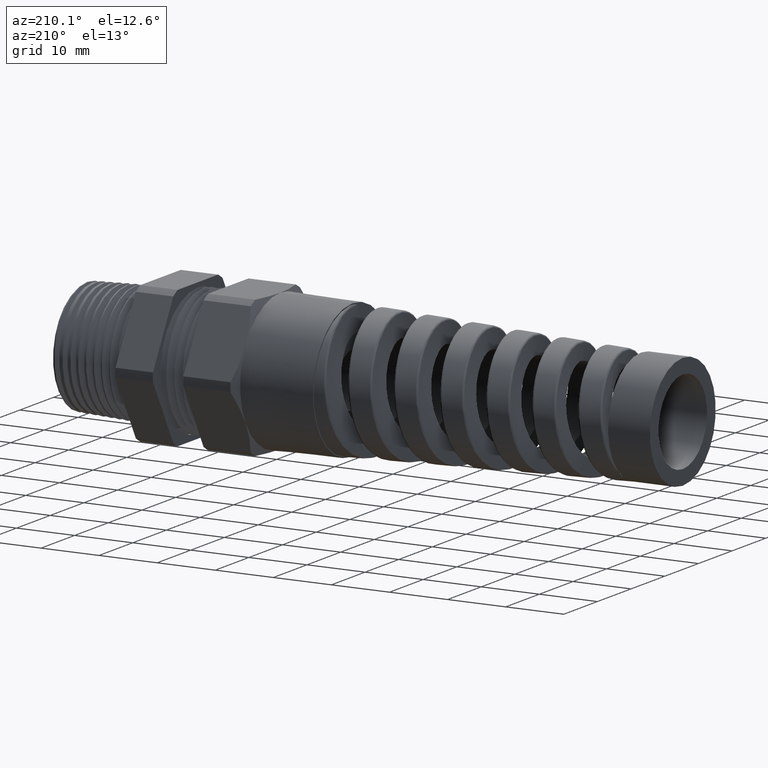
[diagram: clean part render]
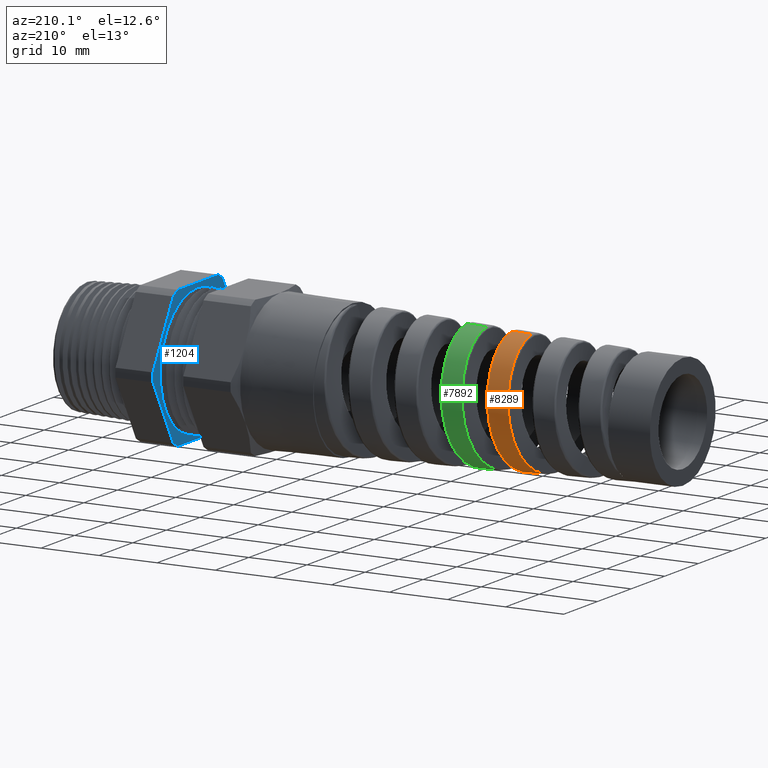
[diagram: same view with three faces highlighted in distinct colors, each labeled with its STEP entity id]
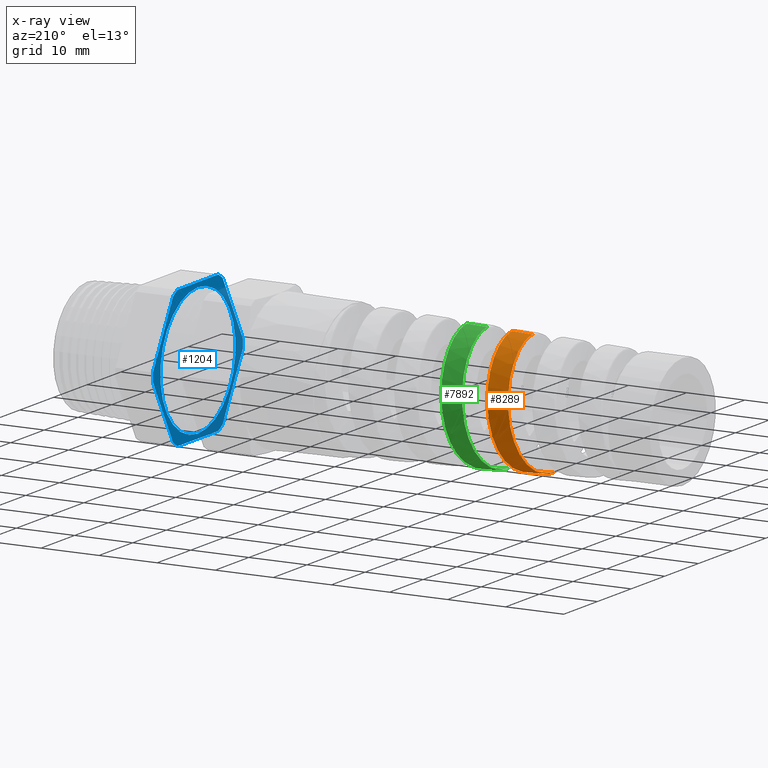
[diagram: x-ray of the same camera — body ghosted, the three highlighted faces saturated]
A machine part, auxiliary view with three faces highlighted in distinct colors.
The next image is the same camera in x-ray (body ghosted, the three faces saturated) — at least one of them is partly hidden behind the body in this view.
Their STEP definitions:

[orange] entity #8289 — the highlighted conical surface has half-angle 2.001 deg.
#6304 = DIRECTION ( 'NONE',  ( 0.0000000000000000000, 0.0000000000000000000, -1.000000000000000000 ) ) ;
#6305 = DIRECTION ( 'NONE',  ( 1.000000000000000000, 0.0000000000000000000, 0.0000000000000000000 ) ) ;
#6306 = CARTESIAN_POINT ( 'NONE',  ( -0.8125000000000001100, 0.0000000000000000000, 0.0000000000000000000 ) ) ;
#6307 = AXIS2_PLACEMENT_3D ( 'NONE', #6306, #6305, #6304 ) ;
#6309 = CONICAL_SURFACE ( 'NONE', #6307, 0.4699999999999997000, 0.03491723117042447300 ) ;
#6310 = FACE_OUTER_BOUND ( 'NONE', #8290, .T. ) ;
#6569 = CARTESIAN_POINT ( 'NONE',  ( -2.520890088642538300, -6.554961250664029700E-016, 0.4103234935826344800 ) ) ;
#6571 = CARTESIAN_POINT ( 'NONE',  ( -2.382622367421257900, -1.162062256569629500E-012, 0.4151533826153743800 ) ) ;
#6572 = CARTESIAN_POINT ( 'NONE',  ( -2.535530057869142000, 4.883877589493285900E-015, -0.4098120985427606800 ) ) ;
#6701 = CARTESIAN_POINT ( 'NONE',  ( -2.455623163969273400, 0.4124546707077826900, 0.02935010906068678800 ) ) ;
#6702 = CARTESIAN_POINT ( 'NONE',  ( -2.452460576437910200, 0.4097634502948373500, 0.05612606939273673300 ) ) ;
#6703 = CARTESIAN_POINT ( 'NONE',  ( -2.447693054796924900, 0.4018631530125697500, 0.09569265704391720400 ) ) ;
#6704 = CARTESIAN_POINT ( 'NONE',  ( -2.446100240942570700, 0.3985812000492490200, 0.1087812875034731300 ) ) ;
#6705 = CARTESIAN_POINT ( 'NONE',  ( -2.442895339747758000, 0.3906851840676873200, 0.1347512481100501000 ) ) ;
#6706 = CARTESIAN_POINT ( 'NONE',  ( -2.441287470385564700, 0.3860709988061172800, 0.1476024137888938300 ) ) ;
#6707 = CARTESIAN_POINT ( 'NONE',  ( -2.436518506772265900, 0.3705328584375152700, 0.1850058376123919500 ) ) ;
#6708 = CARTESIAN_POINT ( 'NONE',  ( -2.433375766953780800, 0.3578497915887322600, 0.2087005057276331800 ) ) ;
#6709 = CARTESIAN_POINT ( 'NONE',  ( -2.428617159533685000, 0.3353483246290094900, 0.2423729053444111700 ) ) ;
#6710 = CARTESIAN_POINT ( 'NONE',  ( -2.427015004051396500, 0.3272172450140492000, 0.2533383754506575200 ) ) ;
#6711 = CARTESIAN_POINT ( 'NONE',  ( -2.423823182652007800, 0.3099871308722260700, 0.2743203933354538300 ) ) ;
#6712 = CARTESIAN_POINT ( 'NONE',  ( -2.422237634817187700, 0.3009174298785358700, 0.2843147309983785600 ) ) ;
#6713 = CARTESIAN_POINT ( 'NONE',  ( -2.417488344695855900, 0.2723839510260149300, 0.3128469345260469500 ) ) ;
#6714 = CARTESIAN_POINT ( 'NONE',  ( -2.414331380070115200, 0.2516082814434453300, 0.3299475780043464300 ) ) ;
#6715 = CARTESIAN_POINT ( 'NONE',  ( -2.409531461711748300, 0.2177438171439296800, 0.3526257826350356900 ) ) ;
#6716 = CARTESIAN_POINT ( 'NONE',  ( -2.407929373184233100, 0.2060554721915159300, 0.3596419088151277500 ) ) ;
#6717 = CARTESIAN_POINT ( 'NONE',  ( -2.404759900360482900, 0.1822688929422900900, 0.3723854913059716500 ) ) ;
#6718 = CARTESIAN_POINT ( 'NONE',  ( -2.401607716038892000, 0.1579660836854906400, 0.3839136059991433100 ) ) ;
#6719 = CARTESIAN_POINT ( 'NONE',  ( -2.398457904814599800, 0.1326473187054666200, 0.3930400648114727400 ) ) ;
#6720 = CARTESIAN_POINT ( 'NONE',  ( -2.395292712324435000, 0.1068146005746220700, 0.4009465517130492200 ) ) ;
#6721 = CARTESIAN_POINT ( 'NONE',  ( -2.393693564517252800, 0.09356663231017163500, 0.4043026643819903100 ) ) ;
#6722 = CARTESIAN_POINT ( 'NONE',  ( -2.388924349656614200, 0.05367562409610236000, 0.4123402314850824200 ) ) ;
#6723 = CARTESIAN_POINT ( 'NONE',  ( -2.385783731389099500, 0.02691544841408726300, 0.4150429516557007100 ) ) ;
#6724 = CARTESIAN_POINT ( 'NONE',  ( -2.382622367421257900, -1.162062256569629500E-012, 0.4151533826153743800 ) ) ;
#6725 = B_SPLINE_CURVE_WITH_KNOTS ( 'NONE', 3,
 ( #6724, #6723, #6722, #6721, #6720, #6719, #6718, #6717, #6716, #6715, #6714, #6713, #6712, #6711, #6710, #6709, #6708, #6707, #6706, #6705, #6704, #6703, #6702, #6701, #6777, #6776, #6775, #6774, #6773, #6772, #6771, #6770, #6769, #6768, #6767, #6766, #6765, #6764, #6763, #6762, #6761, #6760, #6759, #6758, #6757, #6756 ),
 .UNSPECIFIED., .F., .F.,
 ( 4, 2, 2, 1, 2, 2, 2, 2, 2, 2, 2, 2, 2, 2, 1, 2, 2, 2, 2, 2, 2, 2, 2, 4 ),
 ( 0.2487723890645576500, 0.2508620945771786700, 0.2519069473334891700, 0.2529518000897996700, 0.2539966528461101700, 0.2550415056024206700, 0.2571312111150417200, 0.2581760638713522200, 0.2592209166276627200, 0.2613106221402837200, 0.2623554748965942200, 0.2634003276529047800, 0.2654900331655257700, 0.2665348859218362700, 0.2675797386781467700, 0.2686245914344572700, 0.2696694441907677700, 0.2717591497033887700, 0.2738488552160098200, 0.2759385607286308200, 0.2769834134849413200, 0.2780282662412518800, 0.2801179717538728700, 0.2822076772664938700 ),
 .UNSPECIFIED. ) ;
#6727 = DIRECTION ( 'NONE',  ( 0.9993904554178625300, 0.0000000000000000000, -0.03491013634572581700 ) ) ;
#6728 = VECTOR ( 'NONE', #6727, 39.37007874015748900 ) ;
#6729 = CARTESIAN_POINT ( 'NONE',  ( -0.8125000000000001100, 0.0000000000000000000, -0.4699999999999997000 ) ) ;
#6730 = LINE ( 'NONE', #6729, #6728 ) ;
#6739 = CARTESIAN_POINT ( 'NONE',  ( -2.641726318552811900, 0.2488881548808424800, -0.3219970296215667300 ) ) ;
#6740 = CARTESIAN_POINT ( 'NONE',  ( -2.648117792817800400, 0.2046159365757712600, -0.3515372433686442800 ) ) ;
#6741 = CARTESIAN_POINT ( 'NONE',  ( -2.651368160356153000, 0.1806496297836547900, -0.3643087066383843800 ) ) ;
#6742 = CARTESIAN_POINT ( 'NONE',  ( -2.657756725379170100, 0.1313954179546882300, -0.3845897992436332900 ) ) ;
#6743 = CARTESIAN_POINT ( 'NONE',  ( -2.660923323347921700, 0.1059611415070740400, -0.3922532157979387000 ) ) ;
#6744 = CARTESIAN_POINT ( 'NONE',  ( -2.665731533148957100, 0.06659410775997647000, -0.3999786724937319800 ) ) ;
#6745 = CARTESIAN_POINT ( 'NONE',  ( -2.667351152406396000, 0.05320865632576702400, -0.4019213225723222100 ) ) ;
#6746 = CARTESIAN_POINT ( 'NONE',  ( -2.670560620915582100, 0.02657883937888307400, -0.4044436077373180200 ) ) ;
#6747 = CARTESIAN_POINT ( 'NONE',  ( -2.672157133109870600, 0.01328071796107075000, -0.4050395196179626400 ) ) ;
#6748 = CARTESIAN_POINT ( 'NONE',  ( -2.673753520549895200, -4.069807014385671700E-015, -0.4049837555240694000 ) ) ;
#6749 = B_SPLINE_CURVE_WITH_KNOTS ( 'NONE', 3,
 ( #6748, #6747, #6746, #6745, #6744, #6743, #6742, #6741, #6740, #6739, #6817, #6816, #6815, #6814, #6813, #6812, #6811, #6810, #6809, #6808, #6807, #6806, #6805, #6804, #6803, #6802, #6801, #6800, #6799, #6798, #6797, #6796, #6795, #6794, #6793, #6792, #6791, #6790, #6789, #6788, #6787, #6786, #6785, #6784, #6783, #6782, #6781, #6780 ),
 .UNSPECIFIED., .F., .F.,
 ( 4, 2, 2, 2, 2, 2, 2, 1, 2, 2, 2, 2, 2, 2, 2, 2, 2, 2, 1, 2, 2, 2, 2, 2, 4 ),
 ( 0.1215856813164472000, 0.1226144166012401600, 0.1236431518860331000, 0.1257006224556190000, 0.1277580930252049100, 0.1298155635947908200, 0.1308442988795837600, 0.1318730341643767300, 0.1329017694491696800, 0.1339305047339626500, 0.1359879753035485600, 0.1370167105883415000, 0.1380454458731344400, 0.1401029164427203500, 0.1411316517275133200, 0.1421603870123062700, 0.1442178575818921800, 0.1452465928666851200, 0.1462753281514780600, 0.1473040634362710300, 0.1483327987210639700, 0.1503902692906498600, 0.1514190045754428000, 0.1524477398602357700, 0.1545052104298216500 ),
 .UNSPECIFIED. ) ;
#6751 = CARTESIAN_POINT ( 'NONE',  ( -2.673753520549895200, -4.069807014385671700E-015, -0.4049837555240694000 ) ) ;
#6752 = DIRECTION ( 'NONE',  ( 0.9993904554178625300, 4.275258673359080400E-018, 0.03491013634572581700 ) ) ;
#6753 = VECTOR ( 'NONE', #6752, 39.37007874015748900 ) ;
#6754 = CARTESIAN_POINT ( 'NONE',  ( -0.8125000000000001100, 5.755839955992556000E-017, 0.4699999999999997000 ) ) ;
#6755 = LINE ( 'NONE', #6754, #6753 ) ;
#6756 = CARTESIAN_POINT ( 'NONE',  ( -2.535530057869142000, 4.883877589493285900E-015, -0.4098120985427606800 ) ) ;
#6757 = CARTESIAN_POINT ( 'NONE',  ( -2.532342870058111700, 0.02688503948214615200, -0.4099234315662440000 ) ) ;
#6758 = CARTESIAN_POINT ( 'NONE',  ( -2.529166970593978100, 0.05370150810292529500, -0.4074144892066017800 ) ) ;
#6759 = CARTESIAN_POINT ( 'NONE',  ( -2.522701397561375900, 0.1071755438181164500, -0.3969497269500948900 ) ) ;
#6760 = CARTESIAN_POINT ( 'NONE',  ( -2.519511715207265900, 0.1329948088019427300, -0.3891526137069673000 ) ) ;
#6761 = CARTESIAN_POINT ( 'NONE',  ( -2.514719855846588200, 0.1702776774294686700, -0.3738026610531121600 ) ) ;
#6762 = CARTESIAN_POINT ( 'NONE',  ( -2.513120886909382200, 0.1824693781044569000, -0.3680710911505436500 ) ) ;
#6763 = CARTESIAN_POINT ( 'NONE',  ( -2.509908373022767600, 0.2063695612699183700, -0.3553521786721038400 ) ) ;
#6764 = CARTESIAN_POINT ( 'NONE',  ( -2.508289519780466200, 0.2181165748296962400, -0.3483316428701150300 ) ) ;
#6765 = CARTESIAN_POINT ( 'NONE',  ( -2.503486176585032500, 0.2518788440297857200, -0.3258123472655338200 ) ) ;
#6766 = CARTESIAN_POINT ( 'NONE',  ( -2.500325870324863900, 0.2726627264678290200, -0.3087670221599879700 ) ) ;
#6767 = CARTESIAN_POINT ( 'NONE',  ( -2.493953526521860600, 0.3108102806421927400, -0.2706696273071634900 ) ) ;
#6768 = CARTESIAN_POINT ( 'NONE',  ( -2.490719203801746900, 0.3282401889334676200, -0.2494286263413821900 ) ) ;
#6769 = CARTESIAN_POINT ( 'NONE',  ( -2.484341753297614200, 0.3581359175870121300, -0.2046417928120691000 ) ) ;
#6770 = CARTESIAN_POINT ( 'NONE',  ( -2.481167714063459200, 0.3708169623586258200, -0.1809302645926657000 ) ) ;
#6771 = CARTESIAN_POINT ( 'NONE',  ( -2.476354194905535000, 0.3863650863964583300, -0.1433535468027846400 ) ) ;
#6772 = CARTESIAN_POINT ( 'NONE',  ( -2.474740510450709000, 0.3909601464045807700, -0.1304747210332105100 ) ) ;
#6773 = CARTESIAN_POINT ( 'NONE',  ( -2.471550336793302700, 0.3987769448893224200, -0.1046052558037284700 ) ) ;
#6774 = CARTESIAN_POINT ( 'NONE',  ( -2.468379599134780600, 0.4052835779091298300, -0.07848601642938801700 ) ) ;
#6775 = CARTESIAN_POINT ( 'NONE',  ( -2.465214311992447900, 0.4092134624650907700, -0.05187949010694226100 ) ) ;
#6776 = CARTESIAN_POINT ( 'NONE',  ( -2.462034944939572900, 0.4118401346894359800, -0.02502854476801634800 ) ) ;
#6777 = CARTESIAN_POINT ( 'NONE',  ( -2.460431088557276900, 0.4125011964952333700, -0.01142017699816974700 ) ) ;
#6780 = CARTESIAN_POINT ( 'NONE',  ( -2.520890088642538300, -6.554961250664029700E-016, 0.4103234935826344800 ) ) ;
#6781 = CARTESIAN_POINT ( 'NONE',  ( -2.524051678631714900, 0.02669005089757516300, 0.4102130547276374200 ) ) ;
#6782 = CARTESIAN_POINT ( 'NONE',  ( -2.527180667594624500, 0.05311302486578543800, 0.4075236729924312500 ) ) ;
#6783 = CARTESIAN_POINT ( 'NONE',  ( -2.531923167806873200, 0.09233569011395639800, 0.3996263528210992100 ) ) ;
#6784 = CARTESIAN_POINT ( 'NONE',  ( -2.533520085282181500, 0.1054043615707585000, 0.3963251430354849900 ) ) ;
#6785 = CARTESIAN_POINT ( 'NONE',  ( -2.536707723724120500, 0.1310775971079963800, 0.3884727720155930500 ) ) ;
#6786 = CARTESIAN_POINT ( 'NONE',  ( -2.538291642345795700, 0.1436289537902586700, 0.3839457930861098200 ) ) ;
#6787 = CARTESIAN_POINT ( 'NONE',  ( -2.543036214599128500, 0.1804488615585210200, 0.3686140567065058200 ) ) ;
#6788 = CARTESIAN_POINT ( 'NONE',  ( -2.546190373281767000, 0.2038909605187594900, 0.3560748550730182800 ) ) ;
#6789 = CARTESIAN_POINT ( 'NONE',  ( -2.550980065483729100, 0.2373429209785331600, 0.3336948116894409300 ) ) ;
#6790 = CARTESIAN_POINT ( 'NONE',  ( -2.552581437322299300, 0.2481716168029964300, 0.3256484989624152700 ) ) ;
#6791 = CARTESIAN_POINT ( 'NONE',  ( -2.555751807095033400, 0.2687850037163486700, 0.3087071306314120900 ) ) ;
#6792 = CARTESIAN_POINT ( 'NONE',  ( -2.558906018983220700, 0.2884749197618918800, 0.2908396333557280400 ) ) ;
#6793 = CARTESIAN_POINT ( 'NONE',  ( -2.562060485393192100, 0.3063400503069720900, 0.2711475327264196200 ) ) ;
#6794 = CARTESIAN_POINT ( 'NONE',  ( -2.565231642518686500, 0.3232781033730484600, 0.2505312438033781000 ) ) ;
#6795 = CARTESIAN_POINT ( 'NONE',  ( -2.566834089403928800, 0.3313223647427513400, 0.2397005871893317700 ) ) ;
#6796 = CARTESIAN_POINT ( 'NONE',  ( -2.571624899851265900, 0.3536922915079832000, 0.2062421505911262400 ) ) ;
#6797 = CARTESIAN_POINT ( 'NONE',  ( -2.574781057768706500, 0.3662203789598982300, 0.1827941160615823000 ) ) ;
#6798 = CARTESIAN_POINT ( 'NONE',  ( -2.579544505277315400, 0.3815232441041946900, 0.1459620576249473200 ) ) ;
#6799 = CARTESIAN_POINT ( 'NONE',  ( -2.581136911621356900, 0.3860385855202550500, 0.1334060596519310600 ) ) ;
#6800 = CARTESIAN_POINT ( 'NONE',  ( -2.584342771693018300, 0.3938624781998261200, 0.1077213908227232500 ) ) ;
#6801 = CARTESIAN_POINT ( 'NONE',  ( -2.585947675675608800, 0.3971452351257284100, 0.09465218944250329600 ) ) ;
#6802 = CARTESIAN_POINT ( 'NONE',  ( -2.590715740931921500, 0.4049804066749681000, 0.05542349740551923100 ) ) ;
#6803 = CARTESIAN_POINT ( 'NONE',  ( -2.593862866232275800, 0.4076173797470051300, 0.02899574436380169700 ) ) ;
#6804 = CARTESIAN_POINT ( 'NONE',  ( -2.598635203620443000, 0.4076765528262853400, -0.01104863761635697400 ) ) ;
#6805 = CARTESIAN_POINT ( 'NONE',  ( -2.600243634808937300, 0.4070329067038465100, -0.02453923735022445200 ) ) ;
#6806 = CARTESIAN_POINT ( 'NONE',  ( -2.603443154909855600, 0.4044294261951001400, -0.05122220221134351400 ) ) ;
#6807 = CARTESIAN_POINT ( 'NONE',  ( -2.605033555899692200, 0.4024797675048288300, -0.06440914540261188900 ) ) ;
#6808 = CARTESIAN_POINT ( 'NONE',  ( -2.609800251897335800, 0.3947368309132113800, -0.1035154094123804500 ) ) ;
#6809 = CARTESIAN_POINT ( 'NONE',  ( -2.612972581275265300, 0.3870676793371530300, -0.1289844440558389200 ) ) ;
#6810 = CARTESIAN_POINT ( 'NONE',  ( -2.617801422532062700, 0.3716746163971326200, -0.1662446845183222800 ) ) ;
#6811 = CARTESIAN_POINT ( 'NONE',  ( -2.619408734843311000, 0.3659274636296087100, -0.1784032418374415000 ) ) ;
#6812 = CARTESIAN_POINT ( 'NONE',  ( -2.622595386835696800, 0.3533713436521929200, -0.2019127227689288500 ) ) ;
#6813 = CARTESIAN_POINT ( 'NONE',  ( -2.625767200082314500, 0.3397149077886057500, -0.2247093500536934700 ) ) ;
#6814 = CARTESIAN_POINT ( 'NONE',  ( -2.628941850178991000, 0.3238821303869016100, -0.2460913957688842800 ) ) ;
#6815 = CARTESIAN_POINT ( 'NONE',  ( -2.632134805337901500, 0.3069423160384400800, -0.2667514724104806400 ) ) ;
#6816 = CARTESIAN_POINT ( 'NONE',  ( -2.633749182655055900, 0.2978647525279866600, -0.2767698524231881300 ) ) ;
#6817 = CARTESIAN_POINT ( 'NONE',  ( -2.638556196777662500, 0.2694464133511005900, -0.3051640198755324900 ) ) ;
#7671 = ORIENTED_EDGE ( 'NONE', *, *, #12248, .T. ) ;
#8289 = ADVANCED_FACE ( 'NONE', ( #6310 ), #6309, .T. ) ;
#8290 = EDGE_LOOP ( 'NONE', ( #7671, #12235, #12246, #12242 ) ) ;
#12234 = VERTEX_POINT ( 'NONE', #6569 ) ;
#12235 = ORIENTED_EDGE ( 'NONE', *, *, #12243, .T. ) ;
#12236 = VERTEX_POINT ( 'NONE', #6572 ) ;
#12237 = VERTEX_POINT ( 'NONE', #6571 ) ;
#12239 = EDGE_CURVE ( 'NONE', #12244, #12236, #6730, .T. ) ;
#12241 = EDGE_CURVE ( 'NONE', #12237, #12236, #6725, .T. ) ;
#12242 = ORIENTED_EDGE ( 'NONE', *, *, #12239, .F. ) ;
#12243 = EDGE_CURVE ( 'NONE', #12234, #12237, #6755, .T. ) ;
#12244 = VERTEX_POINT ( 'NONE', #6751 ) ;
#12246 = ORIENTED_EDGE ( 'NONE', *, *, #12241, .T. ) ;
#12248 = EDGE_CURVE ( 'NONE', #12244, #12234, #6749, .T. ) ;

[blue] entity #1204 — the highlighted planar face has unit normal (1, 0, 0).
#1158 = VERTEX_POINT ( 'NONE', #8594 ) ;
#1198 = EDGE_CURVE ( 'NONE', #1633, #1632, #8654, .T. ) ;
#1199 = EDGE_LOOP ( 'NONE', ( #1200, #1778 ) ) ;
#1200 = ORIENTED_EDGE ( 'NONE', *, *, #1198, .T. ) ;
#1204 = ADVANCED_FACE ( 'NONE', ( #8649, #8648 ), #8647, .F. ) ;
#1218 = VERTEX_POINT ( 'NONE', #8636 ) ;
#1219 = ORIENTED_EDGE ( 'NONE', *, *, #1221, .F. ) ;
#1220 = EDGE_CURVE ( 'NONE', #1218, #1774, #8700, .T. ) ;
#1221 = EDGE_CURVE ( 'NONE', #1218, #1222, #8701, .T. ) ;
#1222 = VERTEX_POINT ( 'NONE', #8692 ) ;
#1223 = ORIENTED_EDGE ( 'NONE', *, *, #1220, .T. ) ;
#1226 = EDGE_CURVE ( 'NONE', #1231, #1222, #8689, .T. ) ;
#1231 = VERTEX_POINT ( 'NONE', #8674 ) ;
#1232 = ORIENTED_EDGE ( 'NONE', *, *, #1226, .T. ) ;
#1632 = VERTEX_POINT ( 'NONE', #9677 ) ;
#1633 = VERTEX_POINT ( 'NONE', #9676 ) ;
#1634 = EDGE_CURVE ( 'NONE', #1632, #1633, #9675, .T. ) ;
#1764 = EDGE_CURVE ( 'NONE', #1946, #1773, #9732, .T. ) ;
#1765 = EDGE_CURVE ( 'NONE', #1772, #1773, #9723, .T. ) ;
#1766 = EDGE_CURVE ( 'NONE', #1772, #1774, #9718, .T. ) ;
#1768 = ORIENTED_EDGE ( 'NONE', *, *, #1765, .T. ) ;
#1770 = ORIENTED_EDGE ( 'NONE', *, *, #1766, .F. ) ;
#1771 = EDGE_LOOP ( 'NONE', ( #1770, #1768, #1775, #1945, #1982, #1935, #1933, #1910, #1903, #1232, #1219, #1223 ) ) ;
#1772 = VERTEX_POINT ( 'NONE', #9774 ) ;
#1773 = VERTEX_POINT ( 'NONE', #9773 ) ;
#1774 = VERTEX_POINT ( 'NONE', #9772 ) ;
#1775 = ORIENTED_EDGE ( 'NONE', *, *, #1764, .F. ) ;
#1778 = ORIENTED_EDGE ( 'NONE', *, *, #1634, .T. ) ;
#1903 = ORIENTED_EDGE ( 'NONE', *, *, #1904, .F. ) ;
#1904 = EDGE_CURVE ( 'NONE', #1231, #1906, #9800, .T. ) ;
#1906 = VERTEX_POINT ( 'NONE', #9796 ) ;
#1907 = EDGE_CURVE ( 'NONE', #1911, #1906, #9794, .T. ) ;
#1910 = ORIENTED_EDGE ( 'NONE', *, *, #1907, .T. ) ;
#1911 = VERTEX_POINT ( 'NONE', #9784 ) ;
#1932 = EDGE_CURVE ( 'NONE', #1911, #1936, #9889, .T. ) ;
#1933 = ORIENTED_EDGE ( 'NONE', *, *, #1932, .F. ) ;
#1934 = EDGE_CURVE ( 'NONE', #1938, #1936, #9885, .T. ) ;
#1935 = ORIENTED_EDGE ( 'NONE', *, *, #1934, .T. ) ;
#1936 = VERTEX_POINT ( 'NONE', #9955 ) ;
#1938 = VERTEX_POINT ( 'NONE', #9947 ) ;
#1945 = ORIENTED_EDGE ( 'NONE', *, *, #1947, .T. ) ;
#1946 = VERTEX_POINT ( 'NONE', #9936 ) ;
#1947 = EDGE_CURVE ( 'NONE', #1946, #1158, #9935, .T. ) ;
#1979 = EDGE_CURVE ( 'NONE', #1938, #1158, #9990, .T. ) ;
#1982 = ORIENTED_EDGE ( 'NONE', *, *, #1979, .F. ) ;
#8594 = CARTESIAN_POINT ( 'NONE',  ( -0.2537313432835821600, -0.2370589800028677400, 0.4699999999999999200 ) ) ;
#8636 = CARTESIAN_POINT ( 'NONE',  ( -0.2537313432835821600, -0.2370589800028678500, -0.4699999999999997500 ) ) ;
#8643 = DIRECTION ( 'NONE',  ( 0.0000000000000000000, 0.0000000000000000000, -1.000000000000000000 ) ) ;
#8644 = DIRECTION ( 'NONE',  ( 1.000000000000000000, 0.0000000000000000000, 0.0000000000000000000 ) ) ;
#8645 = CARTESIAN_POINT ( 'NONE',  ( -0.2537313432835821000, 0.4399000000000000100, 0.0000000000000000000 ) ) ;
#8646 = AXIS2_PLACEMENT_3D ( 'NONE', #8645, #8644, #8643 ) ;
#8647 = PLANE ( 'NONE',  #8646 ) ;
#8648 = FACE_OUTER_BOUND ( 'NONE', #1771, .T. ) ;
#8649 = FACE_BOUND ( 'NONE', #1199, .T. ) ;
#8650 = DIRECTION ( 'NONE',  ( 0.0000000000000000000, 0.0000000000000000000, -1.000000000000000000 ) ) ;
#8651 = DIRECTION ( 'NONE',  ( 1.000000000000000000, 0.0000000000000000000, 0.0000000000000000000 ) ) ;
#8652 = CARTESIAN_POINT ( 'NONE',  ( -0.2537313432835821600, 0.0000000000000000000, 0.0000000000000000000 ) ) ;
#8653 = AXIS2_PLACEMENT_3D ( 'NONE', #8652, #8651, #8650 ) ;
#8654 = CIRCLE ( 'NONE', #8653, 0.4399000000000000100 ) ;
#8674 = CARTESIAN_POINT ( 'NONE',  ( -0.2537313432835821600, 0.2885024497772524200, -0.4402990988777104000 ) ) ;
#8681 = DIRECTION ( 'NONE',  ( 0.0000000000000000000, 0.0000000000000000000, 1.000000000000000000 ) ) ;
#8682 = DIRECTION ( 'NONE',  ( -1.000000000000000000, 0.0000000000000000000, 0.0000000000000000000 ) ) ;
#8683 = CARTESIAN_POINT ( 'NONE',  ( -0.2537313432835821000, 0.0000000000000000000, 0.0000000000000000000 ) ) ;
#8684 = AXIS2_PLACEMENT_3D ( 'NONE', #8683, #8682, #8681 ) ;
#8689 = CIRCLE ( 'NONE', #8684, 0.5263999999999999800 ) ;
#8692 = CARTESIAN_POINT ( 'NONE',  ( -0.2537313432835821600, 0.2370589800028677400, -0.4699999999999999200 ) ) ;
#8693 = DIRECTION ( 'NONE',  ( 0.0000000000000000000, 1.000000000000000000, 0.0000000000000000000 ) ) ;
#8694 = VECTOR ( 'NONE', #8693, 39.37007874015748100 ) ;
#8695 = CARTESIAN_POINT ( 'NONE',  ( -0.2537313432835821000, 0.4399000000000000100, -0.4699999999999999200 ) ) ;
#8696 = DIRECTION ( 'NONE',  ( 0.0000000000000000000, 0.0000000000000000000, 1.000000000000000000 ) ) ;
#8697 = DIRECTION ( 'NONE',  ( -1.000000000000000000, 0.0000000000000000000, 0.0000000000000000000 ) ) ;
#8698 = CARTESIAN_POINT ( 'NONE',  ( -0.2537313432835821000, 0.0000000000000000000, 0.0000000000000000000 ) ) ;
#8699 = AXIS2_PLACEMENT_3D ( 'NONE', #8698, #8697, #8696 ) ;
#8700 = CIRCLE ( 'NONE', #8699, 0.5263999999999999800 ) ;
#8701 = LINE ( 'NONE', #8695, #8694 ) ;
#9671 = DIRECTION ( 'NONE',  ( 0.0000000000000000000, 0.0000000000000000000, -1.000000000000000000 ) ) ;
#9672 = DIRECTION ( 'NONE',  ( 1.000000000000000000, 0.0000000000000000000, 0.0000000000000000000 ) ) ;
#9673 = CARTESIAN_POINT ( 'NONE',  ( -0.2537313432835821600, 0.0000000000000000000, 0.0000000000000000000 ) ) ;
#9674 = AXIS2_PLACEMENT_3D ( 'NONE', #9673, #9672, #9671 ) ;
#9675 = CIRCLE ( 'NONE', #9674, 0.4399000000000000100 ) ;
#9676 = CARTESIAN_POINT ( 'NONE',  ( -0.2537313432835821600, 0.0000000000000000000, -0.4399000000000000100 ) ) ;
#9677 = CARTESIAN_POINT ( 'NONE',  ( -0.2537313432835821600, 5.387221269449206900E-017, 0.4399000000000000100 ) ) ;
#9715 = DIRECTION ( 'NONE',  ( 0.0000000000000000000, 0.5000000000000001100, -0.8660254037844386000 ) ) ;
#9716 = VECTOR ( 'NONE', #9715, 39.37007874015748100 ) ;
#9717 = CARTESIAN_POINT ( 'NONE',  ( -0.2537313432835821000, -0.2970569397786861400, -0.4254822875623873200 ) ) ;
#9718 = LINE ( 'NONE', #9717, #9716 ) ;
#9719 = DIRECTION ( 'NONE',  ( 0.0000000000000000000, 0.0000000000000000000, 1.000000000000000000 ) ) ;
#9720 = DIRECTION ( 'NONE',  ( -1.000000000000000000, 0.0000000000000000000, 0.0000000000000000000 ) ) ;
#9721 = CARTESIAN_POINT ( 'NONE',  ( -0.2537313432835821000, 0.0000000000000000000, 0.0000000000000000000 ) ) ;
#9722 = AXIS2_PLACEMENT_3D ( 'NONE', #9721, #9720, #9719 ) ;
#9723 = CIRCLE ( 'NONE', #9722, 0.5263999999999999800 ) ;
#9724 = DIRECTION ( 'NONE',  ( 0.0000000000000000000, -0.5000000000000000000, -0.8660254037844386000 ) ) ;
#9725 = VECTOR ( 'NONE', #9724, 39.37007874015748100 ) ;
#9726 = CARTESIAN_POINT ( 'NONE',  ( -0.2537313432835821000, -0.2970569397786860200, 0.4254822875623872100 ) ) ;
#9732 = LINE ( 'NONE', #9726, #9725 ) ;
#9772 = CARTESIAN_POINT ( 'NONE',  ( -0.2537313432835821600, -0.2885024497772522600, -0.4402990988777105700 ) ) ;
#9773 = CARTESIAN_POINT ( 'NONE',  ( -0.2537313432835821600, -0.5255614297801198800, 0.02970090112228906600 ) ) ;
#9774 = CARTESIAN_POINT ( 'NONE',  ( -0.2537313432835821600, -0.5255614297801198800, -0.02970090112228941000 ) ) ;
#9784 = CARTESIAN_POINT ( 'NONE',  ( -0.2537313432835821600, 0.5255614297801198800, 0.02970090112228932300 ) ) ;
#9790 = DIRECTION ( 'NONE',  ( 0.0000000000000000000, 0.0000000000000000000, 1.000000000000000000 ) ) ;
#9791 = DIRECTION ( 'NONE',  ( -1.000000000000000000, 0.0000000000000000000, 0.0000000000000000000 ) ) ;
#9792 = CARTESIAN_POINT ( 'NONE',  ( -0.2537313432835821000, 0.0000000000000000000, 0.0000000000000000000 ) ) ;
#9793 = AXIS2_PLACEMENT_3D ( 'NONE', #9792, #9791, #9790 ) ;
#9794 = CIRCLE ( 'NONE', #9793, 0.5263999999999999800 ) ;
#9796 = CARTESIAN_POINT ( 'NONE',  ( -0.2537313432835821600, 0.5255614297801198800, -0.02970090112228958000 ) ) ;
#9797 = DIRECTION ( 'NONE',  ( 0.0000000000000000000, 0.5000000000000000000, 0.8660254037844386000 ) ) ;
#9798 = VECTOR ( 'NONE', #9797, 39.37007874015748900 ) ;
#9799 = CARTESIAN_POINT ( 'NONE',  ( -0.2537313432835821000, 0.5170069397786861700, -0.04451771243761273900 ) ) ;
#9800 = LINE ( 'NONE', #9799, #9798 ) ;
#9885 = CIRCLE ( 'NONE', #9959, 0.5263999999999999800 ) ;
#9886 = DIRECTION ( 'NONE',  ( 0.0000000000000000000, -0.5000000000000001100, 0.8660254037844386000 ) ) ;
#9887 = VECTOR ( 'NONE', #9886, 39.37007874015748100 ) ;
#9888 = CARTESIAN_POINT ( 'NONE',  ( -0.2537313432835821000, 0.5170069397786860600, 0.04451771243761267600 ) ) ;
#9889 = LINE ( 'NONE', #9888, #9887 ) ;
#9931 = DIRECTION ( 'NONE',  ( 0.0000000000000000000, 0.0000000000000000000, 1.000000000000000000 ) ) ;
#9932 = DIRECTION ( 'NONE',  ( -1.000000000000000000, 0.0000000000000000000, 0.0000000000000000000 ) ) ;
#9933 = CARTESIAN_POINT ( 'NONE',  ( -0.2537313432835821000, 0.0000000000000000000, 0.0000000000000000000 ) ) ;
#9934 = AXIS2_PLACEMENT_3D ( 'NONE', #9933, #9932, #9931 ) ;
#9935 = CIRCLE ( 'NONE', #9934, 0.5263999999999999800 ) ;
#9936 = CARTESIAN_POINT ( 'NONE',  ( -0.2537313432835821600, -0.2885024497772517000, 0.4402990988777108500 ) ) ;
#9947 = CARTESIAN_POINT ( 'NONE',  ( -0.2537313432835821600, 0.2370589800028677600, 0.4699999999999998600 ) ) ;
#9955 = CARTESIAN_POINT ( 'NONE',  ( -0.2537313432835821600, 0.2885024497772521500, 0.4402990988777105700 ) ) ;
#9956 = DIRECTION ( 'NONE',  ( 0.0000000000000000000, 0.0000000000000000000, 1.000000000000000000 ) ) ;
#9957 = DIRECTION ( 'NONE',  ( -1.000000000000000000, 0.0000000000000000000, 0.0000000000000000000 ) ) ;
#9958 = CARTESIAN_POINT ( 'NONE',  ( -0.2537313432835821000, 0.0000000000000000000, 0.0000000000000000000 ) ) ;
#9959 = AXIS2_PLACEMENT_3D ( 'NONE', #9958, #9957, #9956 ) ;
#9987 = DIRECTION ( 'NONE',  ( 0.0000000000000000000, -1.000000000000000000, 0.0000000000000000000 ) ) ;
#9988 = VECTOR ( 'NONE', #9987, 39.37007874015748100 ) ;
#9989 = CARTESIAN_POINT ( 'NONE',  ( -0.2537313432835821000, 0.4399000000000000100, 0.4699999999999999200 ) ) ;
#9990 = LINE ( 'NONE', #9989, #9988 ) ;

[green] entity #7892 — the highlighted conical surface has half-angle 2.001 deg.
#6100 = CARTESIAN_POINT ( 'NONE',  ( -2.288167012396479500, 0.4176662510634930300, 0.02911164028468786800 ) ) ;
#6101 = CARTESIAN_POINT ( 'NONE',  ( -2.289754803557809000, 0.4183349807593952400, 0.01543617699357949200 ) ) ;
#6102 = CARTESIAN_POINT ( 'NONE',  ( -2.294509906346824800, 0.4183445143435191000, -0.02548581823666517400 ) ) ;
#6103 = CARTESIAN_POINT ( 'NONE',  ( -2.297669209177426900, 0.4157073542411313700, -0.05262891122049774600 ) ) ;
#6104 = CARTESIAN_POINT ( 'NONE',  ( -2.302483415717494300, 0.4076794337151417000, -0.09311985461207127100 ) ) ;
#6105 = CARTESIAN_POINT ( 'NONE',  ( -2.304097270151829900, 0.4043168273248789500, -0.1065486142534396200 ) ) ;
#6106 = CARTESIAN_POINT ( 'NONE',  ( -2.307292151115513300, 0.3963717569740640700, -0.1327436282708420700 ) ) ;
#6107 = CARTESIAN_POINT ( 'NONE',  ( -2.308881901792380700, 0.3917762211296571000, -0.1455838461333848800 ) ) ;
#6108 = CARTESIAN_POINT ( 'NONE',  ( -2.312056349246057500, 0.3813569233853305000, -0.1707557632182317200 ) ) ;
#6109 = CARTESIAN_POINT ( 'NONE',  ( -2.313642374275435300, 0.3755331674339663100, -0.1830872965141849300 ) ) ;
#6110 = CARTESIAN_POINT ( 'NONE',  ( -2.316828596989113800, 0.3626402616693123500, -0.2072322900848523300 ) ) ;
#6111 = CARTESIAN_POINT ( 'NONE',  ( -2.318437328800426300, 0.3555286401890584400, -0.2191067085528556600 ) ) ;
#6112 = CARTESIAN_POINT ( 'NONE',  ( -2.323242784866901300, 0.3325812550064331000, -0.2534288033080204800 ) ) ;
#6113 = CARTESIAN_POINT ( 'NONE',  ( -2.326403402130573300, 0.3152553145418203800, -0.2744904630064796700 ) ) ;
#6114 = CARTESIAN_POINT ( 'NONE',  ( -2.331178988148594000, 0.2863099603845307700, -0.3034143445638339800 ) ) ;
#6115 = CARTESIAN_POINT ( 'NONE',  ( -2.332776451426994400, 0.2761652644394799700, -0.3126077417233734700 ) ) ;
#6116 = CARTESIAN_POINT ( 'NONE',  ( -2.335998028759848300, 0.2548543414591130100, -0.3300701454165322300 ) ) ;
#6117 = CARTESIAN_POINT ( 'NONE',  ( -2.337612998253243600, 0.2437447955842601300, -0.3382835331955992800 ) ) ;
#6118 = CARTESIAN_POINT ( 'NONE',  ( -2.342415312064082000, 0.2095956914400192400, -0.3610238505927599300 ) ) ;
#6119 = CARTESIAN_POINT ( 'NONE',  ( -2.345585725046948500, 0.1855488558591580600, -0.3738319686734853400 ) ) ;
#6120 = CARTESIAN_POINT ( 'NONE',  ( -2.350383579275988400, 0.1475559585446966100, -0.3894913521749836000 ) ) ;
#6121 = CARTESIAN_POINT ( 'NONE',  ( -2.351999528691388600, 0.1344938904901048500, -0.3941344438761559300 ) ) ;
#6122 = CARTESIAN_POINT ( 'NONE',  ( -2.355208142012116900, 0.1081663153395430300, -0.4020414474231344700 ) ) ;
#6123 = CARTESIAN_POINT ( 'NONE',  ( -2.356802077889085900, 0.09489418792836128200, -0.4053182789998472900 ) ) ;
#6124 = CARTESIAN_POINT ( 'NONE',  ( -2.361578703404284800, 0.05476356906855601300, -0.4131674011868359800 ) ) ;
#6125 = CARTESIAN_POINT ( 'NONE',  ( -2.364756262504506900, 0.02759387857910173400, -0.4157774711837908300 ) ) ;
#6126 = CARTESIAN_POINT ( 'NONE',  ( -2.367991258203965700, 5.228132934047360000E-016, -0.4156644681624654900 ) ) ;
#6127 = B_SPLINE_CURVE_WITH_KNOTS ( 'NONE', 3,
 ( #6126, #6125, #6124, #6123, #6122, #6121, #6120, #6119, #6118, #6117, #6116, #6115, #6114, #6113, #6112, #6111, #6110, #6109, #6108, #6107, #6106, #6105, #6104, #6103, #6102, #6101, #6100, #6175, #6174, #6173, #6172, #6171, #6170, #6169, #6168, #6167, #6166, #6165, #6164, #6163, #6162, #6161, #6160, #6159, #6158, #6157, #6156, #6155, #6154, #6153 ),
 .UNSPECIFIED., .F., .F.,
 ( 4, 2, 2, 2, 2, 2, 2, 2, 2, 2, 2, 2, 2, 2, 2, 2, 2, 2, 2, 2, 2, 2, 2, 2, 4 ),
 ( 0.1878476739865820000, 0.1899581426947683200, 0.1910133770488615100, 0.1920686114029546700, 0.1941790801111409900, 0.1952343144652341500, 0.1962895488193273100, 0.1984000175275136600, 0.1994552518816068200, 0.2005104862357000000, 0.2015657205897931600, 0.2026209549438863200, 0.2047314236520726700, 0.2057866580061658300, 0.2068418923602589900, 0.2089523610684453400, 0.2100075954225385000, 0.2110628297766316600, 0.2131732984848180000, 0.2142285328389111900, 0.2152837671930043500, 0.2173942359011906700, 0.2184494702552838600, 0.2195047046093770400, 0.2216151733175633600 ),
 .UNSPECIFIED. ) ;
#6128 = CARTESIAN_POINT ( 'NONE',  ( -2.367991258203965700, 5.228132934047360000E-016, -0.4156644681624654900 ) ) ;
#6129 = CARTESIAN_POINT ( 'NONE',  ( -2.215119307206334200, 2.784176562430698800E-017, 0.4210045038050243000 ) ) ;
#6130 = DIRECTION ( 'NONE',  ( 0.9993904554178625300, 4.275258673359080400E-018, 0.03491013634572581700 ) ) ;
#6131 = VECTOR ( 'NONE', #6130, 39.37007874015748900 ) ;
#6132 = CARTESIAN_POINT ( 'NONE',  ( -0.8125000000000001100, 5.755839955992556000E-017, 0.4699999999999997000 ) ) ;
#6133 = LINE ( 'NONE', #6132, #6131 ) ;
#6153 = CARTESIAN_POINT ( 'NONE',  ( -2.215119307206334200, 2.784176562430698800E-017, 0.4210045038050243000 ) ) ;
#6154 = CARTESIAN_POINT ( 'NONE',  ( -2.218281670853545300, 0.02740640137705553600, 0.4208940379250468200 ) ) ;
#6155 = CARTESIAN_POINT ( 'NONE',  ( -2.221410912257569100, 0.05451456553721207400, 0.4181333519955448000 ) ) ;
#6156 = CARTESIAN_POINT ( 'NONE',  ( -2.226152540918750600, 0.09472103275118495800, 0.4100429712855003800 ) ) ;
#6157 = CARTESIAN_POINT ( 'NONE',  ( -2.227746606397548400, 0.1080932216074708800, 0.4066688928176694900 ) ) ;
#6158 = CARTESIAN_POINT ( 'NONE',  ( -2.230941359588943600, 0.1344678925749872000, 0.3986079073303550000 ) ) ;
#6159 = CARTESIAN_POINT ( 'NONE',  ( -2.232528108888314200, 0.1473561281112312500, 0.3939612760754175300 ) ) ;
#6160 = CARTESIAN_POINT ( 'NONE',  ( -2.237277483506813900, 0.1851488759105026900, 0.3782305129955850200 ) ) ;
#6161 = CARTESIAN_POINT ( 'NONE',  ( -2.240427573101569300, 0.2091896993167580200, 0.3653720278175602300 ) ) ;
#6162 = CARTESIAN_POINT ( 'NONE',  ( -2.245203202454972800, 0.2434716970022511600, 0.3424493372145094300 ) ) ;
#6163 = CARTESIAN_POINT ( 'NONE',  ( -2.246805425191750000, 0.2546013283907212500, 0.3341887816840403700 ) ) ;
#6164 = CARTESIAN_POINT ( 'NONE',  ( -2.249995071119087300, 0.2758963623235860500, 0.3166885202063398600 ) ) ;
#6165 = CARTESIAN_POINT ( 'NONE',  ( -2.251592914221439900, 0.2861332268626645100, 0.3073947908243677100 ) ) ;
#6166 = CARTESIAN_POINT ( 'NONE',  ( -2.256381481544403200, 0.3153537132321891400, 0.2781112571020293900 ) ) ;
#6167 = CARTESIAN_POINT ( 'NONE',  ( -2.259528616064483400, 0.3326309895361722600, 0.2569843658111121700 ) ) ;
#6168 = CARTESIAN_POINT ( 'NONE',  ( -2.264277699255295300, 0.3553445445389799000, 0.2229752313807872900 ) ) ;
#6169 = CARTESIAN_POINT ( 'NONE',  ( -2.265865236324399000, 0.3623782216879156700, 0.2112496123556308600 ) ) ;
#6170 = CARTESIAN_POINT ( 'NONE',  ( -2.269063711579898200, 0.3753416319694224400, 0.1870009806606398900 ) ) ;
#6171 = CARTESIAN_POINT ( 'NONE',  ( -2.270674989381264100, 0.3812634889053198600, 0.1744713263542703200 ) ) ;
#6172 = CARTESIAN_POINT ( 'NONE',  ( -2.275456372775374700, 0.3969767237379472900, 0.1365075947748504400 ) ) ;
#6173 = CARTESIAN_POINT ( 'NONE',  ( -2.278605423674153300, 0.4048884474359479800, 0.1104355664691192300 ) ) ;
#6174 = CARTESIAN_POINT ( 'NONE',  ( -2.283367576228126300, 0.4129194513610245400, 0.07019762981030758200 ) ) ;
#6175 = CARTESIAN_POINT ( 'NONE',  ( -2.284968839499729000, 0.4149580676041977300, 0.05653225513060060300 ) ) ;
#6317 = DIRECTION ( 'NONE',  ( 0.0000000000000000000, 0.0000000000000000000, -1.000000000000000000 ) ) ;
#6318 = DIRECTION ( 'NONE',  ( 1.000000000000000000, 0.0000000000000000000, 0.0000000000000000000 ) ) ;
#6319 = CARTESIAN_POINT ( 'NONE',  ( -0.8125000000000001100, 0.0000000000000000000, 0.0000000000000000000 ) ) ;
#6320 = AXIS2_PLACEMENT_3D ( 'NONE', #6319, #6318, #6317 ) ;
#6321 = CONICAL_SURFACE ( 'NONE', #6320, 0.4699999999999997000, 0.03491723117042447300 ) ;
#6322 = FACE_OUTER_BOUND ( 'NONE', #7901, .T. ) ;
#6369 = CARTESIAN_POINT ( 'NONE',  ( -2.076797552563074400, 1.043480938897960100E-012, 0.4258362803023866300 ) ) ;
#6525 = LINE ( 'NONE', #6548, #6547 ) ;
#6532 = CARTESIAN_POINT ( 'NONE',  ( -2.092608776899463700, 0.1359491266704923300, 0.4032082934118072500 ) ) ;
#6533 = CARTESIAN_POINT ( 'NONE',  ( -2.089438035491741500, 0.1094019876896126000, 0.4113204564912383300 ) ) ;
#6534 = CARTESIAN_POINT ( 'NONE',  ( -2.087862526757745300, 0.09600707079413932400, 0.4147049221515982700 ) ) ;
#6535 = CARTESIAN_POINT ( 'NONE',  ( -2.083140324306002700, 0.05546855364601797200, 0.4228844267066804200 ) ) ;
#6536 = CARTESIAN_POINT ( 'NONE',  ( -2.079994297016287700, 0.02794205550513016700, 0.4257246134516701800 ) ) ;
#6537 = CARTESIAN_POINT ( 'NONE',  ( -2.076797552563074400, 1.043480938897960100E-012, 0.4258362803023866300 ) ) ;
#6538 = B_SPLINE_CURVE_WITH_KNOTS ( 'NONE', 3,
 ( #6537, #6536, #6535, #6534, #6533, #6532, #6614, #6613, #6612, #6611, #6610, #6609, #6608, #6607, #6606, #6605, #6604, #6603, #6602, #6601, #6600, #6599, #6598, #6597, #6596, #6595, #6594, #6593, #6592, #6591, #6590, #6589, #6588, #6587, #6586, #6585, #6584, #6583, #6582, #6581, #6580, #6579, #6578, #6577, #6576, #6575, #6574, #6573 ),
 .UNSPECIFIED., .F., .F.,
 ( 4, 2, 2, 2, 2, 2, 2, 2, 2, 2, 2, 2, 2, 2, 2, 2, 2, 2, 2, 2, 2, 2, 2, 4 ),
 ( 0.1806250930066583000, 0.1827682113403087700, 0.1838397705071339900, 0.1849113296739592100, 0.1870544480076096700, 0.1891975663412601400, 0.1913406846749105800, 0.1924122438417358000, 0.1934838030085610500, 0.1956269213422115200, 0.1977700396758619600, 0.1988415988426872100, 0.1999131580095124300, 0.2020562763431628900, 0.2031278355099881100, 0.2041993946768133600, 0.2063425130104638000, 0.2074140721772890500, 0.2084856313441142700, 0.2095571905109395200, 0.2106287496777647400, 0.2127718680114152100, 0.2138434271782404500, 0.2149149863450656700 ),
 .UNSPECIFIED. ) ;
#6543 = CARTESIAN_POINT ( 'NONE',  ( -2.229694748373849000, 4.695415301318030800E-013, -0.4204953628224397700 ) ) ;
#6546 = DIRECTION ( 'NONE',  ( 0.9993904554178625300, 0.0000000000000000000, -0.03491013634572581700 ) ) ;
#6547 = VECTOR ( 'NONE', #6546, 39.37007874015748900 ) ;
#6548 = CARTESIAN_POINT ( 'NONE',  ( -0.8125000000000001100, 0.0000000000000000000, -0.4699999999999997000 ) ) ;
#6573 = CARTESIAN_POINT ( 'NONE',  ( -2.229694748373849000, 4.695415301318030800E-013, -0.4204953628224397700 ) ) ;
#6574 = CARTESIAN_POINT ( 'NONE',  ( -2.228096465265033000, 0.01382995003306190800, -0.4205511931347366000 ) ) ;
#6575 = CARTESIAN_POINT ( 'NONE',  ( -2.226486552888104600, 0.02777225254620684100, -0.4199212231471741700 ) ) ;
#6576 = CARTESIAN_POINT ( 'NONE',  ( -2.223265093222171400, 0.05554050516208231700, -0.4172709655330060800 ) ) ;
#6577 = CARTESIAN_POINT ( 'NONE',  ( -2.221666723378477500, 0.06925240368478762000, -0.4152672541283233800 ) ) ;
#6578 = CARTESIAN_POINT ( 'NONE',  ( -2.216882399224790600, 0.1098845935302730800, -0.4072841680244992400 ) ) ;
#6579 = CARTESIAN_POINT ( 'NONE',  ( -2.213706863048548800, 0.1363060905041745500, -0.3993514180354516000 ) ) ;
#6580 = CARTESIAN_POINT ( 'NONE',  ( -2.208872801908347200, 0.1749042405209204300, -0.3834458424376502300 ) ) ;
#6581 = CARTESIAN_POINT ( 'NONE',  ( -2.207251875593192900, 0.1875755288317613200, -0.3774698284063217600 ) ) ;
#6582 = CARTESIAN_POINT ( 'NONE',  ( -2.204045159221352400, 0.2120136667448299400, -0.3644346956541311100 ) ) ;
#6583 = CARTESIAN_POINT ( 'NONE',  ( -2.202450540769819400, 0.2238528486902982600, -0.3573477654013473800 ) ) ;
#6584 = CARTESIAN_POINT ( 'NONE',  ( -2.199267926664906900, 0.2467816579124868000, -0.3420527097721839900 ) ) ;
#6585 = CARTESIAN_POINT ( 'NONE',  ( -2.197678491935384200, 0.2578711662188323300, -0.3338447069157847200 ) ) ;
#6586 = CARTESIAN_POINT ( 'NONE',  ( -2.194486934062741800, 0.2792886699689416400, -0.3162936700972548400 ) ) ;
#6587 = CARTESIAN_POINT ( 'NONE',  ( -2.192876220225026300, 0.2896685510898696600, -0.3068967184594817400 ) ) ;
#6588 = CARTESIAN_POINT ( 'NONE',  ( -2.188066082753787400, 0.3192003299900014200, -0.2773588128023784500 ) ) ;
#6589 = CARTESIAN_POINT ( 'NONE',  ( -2.184904359553903900, 0.3366814864167772000, -0.2560116163542799400 ) ) ;
#6590 = CARTESIAN_POINT ( 'NONE',  ( -2.180130078161551100, 0.3596755085803654000, -0.2215837975185221100 ) ) ;
#6591 = CARTESIAN_POINT ( 'NONE',  ( -2.178533569226109600, 0.3667984225871980800, -0.2097038130073717000 ) ) ;
#6592 = CARTESIAN_POINT ( 'NONE',  ( -2.175315213723243000, 0.3799274611759521100, -0.1851130907427512000 ) ) ;
#6593 = CARTESIAN_POINT ( 'NONE',  ( -2.173703094606128900, 0.3858874389251144000, -0.1724741418124585400 ) ) ;
#6594 = CARTESIAN_POINT ( 'NONE',  ( -2.168910609204180300, 0.4017290491271145500, -0.1341115016686620600 ) ) ;
#6595 = CARTESIAN_POINT ( 'NONE',  ( -2.165749634794441800, 0.4097108213704667200, -0.1077275131702500700 ) ) ;
#6596 = CARTESIAN_POINT ( 'NONE',  ( -2.160969774620478600, 0.4177939830501509700, -0.06694262305130543900 ) ) ;
#6597 = CARTESIAN_POINT ( 'NONE',  ( -2.159360625458851800, 0.4198401795804804800, -0.05306725832811488900 ) ) ;
#6598 = CARTESIAN_POINT ( 'NONE',  ( -2.156167113537873300, 0.4225300592557162400, -0.02538967776959942900 ) ) ;
#6599 = CARTESIAN_POINT ( 'NONE',  ( -2.154581094325652000, 0.4231855771243585000, -0.01157503320992242700 ) ) ;
#6600 = CARTESIAN_POINT ( 'NONE',  ( -2.149829534866865500, 0.4231350021891203100, 0.02979537515557850000 ) ) ;
#6601 = CARTESIAN_POINT ( 'NONE',  ( -2.146670353236767200, 0.4204310335711642900, 0.05727830645907260000 ) ) ;
#6602 = CARTESIAN_POINT ( 'NONE',  ( -2.140243717576907600, 0.4094910790920366900, 0.1120279535125858300 ) ) ;
#6603 = CARTESIAN_POINT ( 'NONE',  ( -2.137062696401701000, 0.4013886448275693600, 0.1385464522110427800 ) ) ;
#6604 = CARTESIAN_POINT ( 'NONE',  ( -2.132308987545441100, 0.3855414693285515400, 0.1767387136596129400 ) ) ;
#6605 = CARTESIAN_POINT ( 'NONE',  ( -2.130726051991945100, 0.3796349545362587300, 0.1892232550900996300 ) ) ;
#6606 = CARTESIAN_POINT ( 'NONE',  ( -2.127544590729113900, 0.3665509120983246300, 0.2136885826948048700 ) ) ;
#6607 = CARTESIAN_POINT ( 'NONE',  ( -2.125938506772604000, 0.3593311752810264300, 0.2257245282558269500 ) ) ;
#6608 = CARTESIAN_POINT ( 'NONE',  ( -2.121166184032257500, 0.3361611962924512300, 0.2603580335635938300 ) ) ;
#6609 = CARTESIAN_POINT ( 'NONE',  ( -2.118024962904283100, 0.3186548457070667000, 0.2816638691477445500 ) ) ;
#6610 = CARTESIAN_POINT ( 'NONE',  ( -2.111691522529193700, 0.2796022886068655900, 0.3207582244332877800 ) ) ;
#6611 = CARTESIAN_POINT ( 'NONE',  ( -2.108471386181996800, 0.2578262480579518500, 0.3386514375910782400 ) ) ;
#6612 = CARTESIAN_POINT ( 'NONE',  ( -2.102124349064050000, 0.2118916627214702800, 0.3693906839992749400 ) ) ;
#6613 = CARTESIAN_POINT ( 'NONE',  ( -2.098975145087127900, 0.1875996902676848000, 0.3824324953697121300 ) ) ;
#6614 = CARTESIAN_POINT ( 'NONE',  ( -2.094210993703336000, 0.1491557593245625400, 0.3984521819268205300 ) ) ;
#7646 = EDGE_CURVE ( 'NONE', #7650, #10648, #6133, .T. ) ;
#7647 = ORIENTED_EDGE ( 'NONE', *, *, #7646, .T. ) ;
#7650 = VERTEX_POINT ( 'NONE', #6129 ) ;
#7651 = VERTEX_POINT ( 'NONE', #6128 ) ;
#7652 = EDGE_CURVE ( 'NONE', #7651, #7650, #6127, .T. ) ;
#7865 = ORIENTED_EDGE ( 'NONE', *, *, #7652, .T. ) ;
#7892 = ADVANCED_FACE ( 'NONE', ( #6322 ), #6321, .T. ) ;
#7901 = EDGE_LOOP ( 'NONE', ( #7865, #7647, #9409, #11896 ) ) ;
#9409 = ORIENTED_EDGE ( 'NONE', *, *, #11898, .T. ) ;
#10648 = VERTEX_POINT ( 'NONE', #6369 ) ;
#11875 = EDGE_CURVE ( 'NONE', #7651, #11897, #6525, .T. ) ;
#11896 = ORIENTED_EDGE ( 'NONE', *, *, #11875, .F. ) ;
#11897 = VERTEX_POINT ( 'NONE', #6543 ) ;
#11898 = EDGE_CURVE ( 'NONE', #10648, #11897, #6538, .T. ) ;